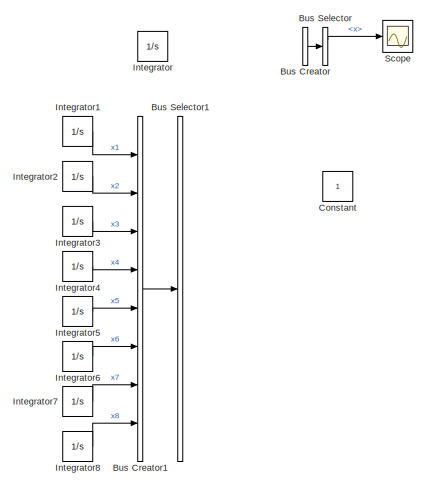
[diagram: root canvas - part 1/2, top left region]
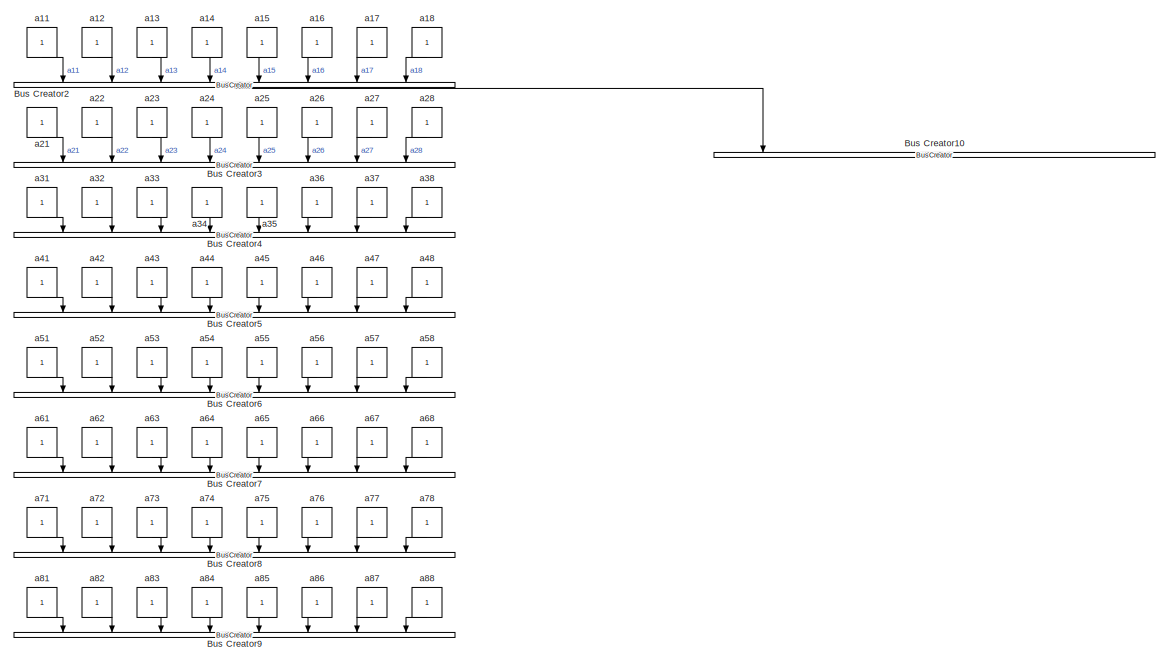
[diagram: root canvas - part 2/2, full width, bottom band]
MODEL slx_18f3fb694a1e
KIND model
CONFIG AbsTol = auto
CONFIG EnableMultiTasking = off
CONFIG FixedStep = 0.001
CONFIG MaxStep = auto
CONFIG MinStep = auto
CONFIG RelTol = 1e-3
CONFIG SampleTimeConstraint = Unconstrained
CONFIG Solver = ode3
CONFIG SolverName = ode3
CONFIG StartTime = 0.0
CONFIG StopTime = 10.0
BLOCK [BusCreator] Bus Creator
  DisplayOption = bar
  InheritFromInputs = on
  Inputs = 2
  Ports = [2, 1]
BLOCK [BusCreator] Bus Creator1
  DisplayOption = bar
  InheritFromInputs = on
  Inputs = 8
  Ports = [8, 1]
BLOCK [BusCreator] Bus Creator10
  DisplayOption = bar
  InheritFromInputs = on
  Inputs = 8
  Ports = [8, 1]
BLOCK [BusCreator] Bus Creator2
  DisplayOption = bar
  InheritFromInputs = on
  Inputs = 8
  Ports = [8, 1]
BLOCK [BusCreator] Bus Creator3
  DisplayOption = bar
  InheritFromInputs = on
  Inputs = 8
  Ports = [8, 1]
BLOCK [BusCreator] Bus Creator4
  DisplayOption = bar
  InheritFromInputs = on
  Inputs = 8
  Ports = [8, 1]
BLOCK [BusCreator] Bus Creator5
  DisplayOption = bar
  InheritFromInputs = on
  Inputs = 8
  Ports = [8, 1]
BLOCK [BusCreator] Bus Creator6
  DisplayOption = bar
  InheritFromInputs = on
  Inputs = 8
  Ports = [8, 1]
BLOCK [BusCreator] Bus Creator7
  DisplayOption = bar
  InheritFromInputs = on
  Inputs = 8
  Ports = [8, 1]
BLOCK [BusCreator] Bus Creator8
  DisplayOption = bar
  InheritFromInputs = on
  Inputs = 8
  Ports = [8, 1]
BLOCK [BusCreator] Bus Creator9
  DisplayOption = bar
  InheritFromInputs = on
  Inputs = 8
  Ports = [8, 1]
BLOCK [BusSelector] Bus Selector
  OutputAsBus = off
  OutputSignals = x,signal2
  Ports = [1, 2]
BLOCK [BusSelector] Bus Selector1
  OutputAsBus = off
  OutputSignals = x1,x2,x3,x4,x5,x6,x7,x8
  Ports = [1, 8]
BLOCK [Constant] Constant
BLOCK [Integrator] Integrator
  InitialCondition = [10, 4, 8, 2, 9, 3, 5, 7]
  Ports = [1, 1]
BLOCK [Integrator] Integrator1
  InitialCondition = [1, 2]
  Ports = [1, 1]
BLOCK [Integrator] Integrator2
  InitialCondition = [1, 2]
  Ports = [1, 1]
BLOCK [Integrator] Integrator3
  InitialCondition = [1, 2]
  Ports = [1, 1]
BLOCK [Integrator] Integrator4
  InitialCondition = [1, 2]
  Ports = [1, 1]
BLOCK [Integrator] Integrator5
  InitialCondition = [1, 2]
  Ports = [1, 1]
BLOCK [Integrator] Integrator6
  InitialCondition = [1, 2]
  Ports = [1, 1]
BLOCK [Integrator] Integrator7
  InitialCondition = [1, 2]
  Ports = [1, 1]
BLOCK [Integrator] Integrator8
  InitialCondition = [1, 2]
  Ports = [1, 1]
BLOCK [Scope] Scope
  Floating = off
  NumInputPorts = 1
  Ports = [1]
  ScopeSpecificationString = Simulink.scopes.TimeScopeBlockCfg('CurrentConfiguration', extmgr.ConfigurationSet(extmgr.Configuration('Core','General UI',true),extmgr.Configuration('Core','Source UI',true),extmgr.Configuration('Sources','WiredSimulink',true),extmgr.Configuration('Visuals','Time Domain',true,'SerializedDisplays',{struct('MinYLimReal','-27530.83223','MaxYLimReal','247797.49009','YLabelReal','','MinYLimMag','   0....<+1441ch>
BLOCK [Constant] a11
BLOCK [Constant] a12
BLOCK [Constant] a13
BLOCK [Constant] a14
BLOCK [Constant] a15
BLOCK [Constant] a16
BLOCK [Constant] a17
BLOCK [Constant] a18
BLOCK [Constant] a21
BLOCK [Constant] a22
BLOCK [Constant] a23
BLOCK [Constant] a24
BLOCK [Constant] a25
BLOCK [Constant] a26
BLOCK [Constant] a27
BLOCK [Constant] a28
BLOCK [Constant] a31
BLOCK [Constant] a32
BLOCK [Constant] a33
BLOCK [Constant] a34
BLOCK [Constant] a35
BLOCK [Constant] a36
BLOCK [Constant] a37
BLOCK [Constant] a38
BLOCK [Constant] a41
BLOCK [Constant] a42
BLOCK [Constant] a43
BLOCK [Constant] a44
BLOCK [Constant] a45
BLOCK [Constant] a46
BLOCK [Constant] a47
BLOCK [Constant] a48
BLOCK [Constant] a51
BLOCK [Constant] a52
BLOCK [Constant] a53
BLOCK [Constant] a54
BLOCK [Constant] a55
BLOCK [Constant] a56
BLOCK [Constant] a57
BLOCK [Constant] a58
BLOCK [Constant] a61
BLOCK [Constant] a62
BLOCK [Constant] a63
BLOCK [Constant] a64
BLOCK [Constant] a65
BLOCK [Constant] a66
BLOCK [Constant] a67
BLOCK [Constant] a68
BLOCK [Constant] a71
BLOCK [Constant] a72
BLOCK [Constant] a73
BLOCK [Constant] a74
BLOCK [Constant] a75
BLOCK [Constant] a76
BLOCK [Constant] a77
BLOCK [Constant] a78
BLOCK [Constant] a81
BLOCK [Constant] a82
BLOCK [Constant] a83
BLOCK [Constant] a84
BLOCK [Constant] a85
BLOCK [Constant] a86
BLOCK [Constant] a87
BLOCK [Constant] a88
LINE Bus Creator1:1 -> Bus Selector1:1
LINE Bus Creator2:1 -> Bus Creator10:1
LINE Bus Creator:1 -> Bus Selector:1
LINE Bus Selector:1 -> Scope:1
LINE Integrator1:1 -> Bus Creator1:1
LINE Integrator2:1 -> Bus Creator1:2
LINE Integrator3:1 -> Bus Creator1:3
LINE Integrator4:1 -> Bus Creator1:4
LINE Integrator5:1 -> Bus Creator1:5
LINE Integrator6:1 -> Bus Creator1:6
LINE Integrator7:1 -> Bus Creator1:7
LINE Integrator8:1 -> Bus Creator1:8
LINE a11:1 -> Bus Creator2:1
LINE a12:1 -> Bus Creator2:2
LINE a13:1 -> Bus Creator2:3
LINE a14:1 -> Bus Creator2:4
LINE a15:1 -> Bus Creator2:5
LINE a16:1 -> Bus Creator2:6
LINE a17:1 -> Bus Creator2:7
LINE a18:1 -> Bus Creator2:8
LINE a21:1 -> Bus Creator3:1
LINE a22:1 -> Bus Creator3:2
LINE a23:1 -> Bus Creator3:3
LINE a24:1 -> Bus Creator3:4
LINE a25:1 -> Bus Creator3:5
LINE a26:1 -> Bus Creator3:6
LINE a27:1 -> Bus Creator3:7
LINE a28:1 -> Bus Creator3:8
LINE a31:1 -> Bus Creator4:1
LINE a32:1 -> Bus Creator4:2
LINE a33:1 -> Bus Creator4:3
LINE a34:1 -> Bus Creator4:4
LINE a35:1 -> Bus Creator4:5
LINE a36:1 -> Bus Creator4:6
LINE a37:1 -> Bus Creator4:7
LINE a38:1 -> Bus Creator4:8
LINE a41:1 -> Bus Creator5:1
LINE a42:1 -> Bus Creator5:2
LINE a43:1 -> Bus Creator5:3
LINE a44:1 -> Bus Creator5:4
LINE a45:1 -> Bus Creator5:5
LINE a46:1 -> Bus Creator5:6
LINE a47:1 -> Bus Creator5:7
LINE a48:1 -> Bus Creator5:8
LINE a51:1 -> Bus Creator6:1
LINE a52:1 -> Bus Creator6:2
LINE a53:1 -> Bus Creator6:3
LINE a54:1 -> Bus Creator6:4
LINE a55:1 -> Bus Creator6:5
LINE a56:1 -> Bus Creator6:6
LINE a57:1 -> Bus Creator6:7
LINE a58:1 -> Bus Creator6:8
LINE a61:1 -> Bus Creator7:1
LINE a62:1 -> Bus Creator7:2
LINE a63:1 -> Bus Creator7:3
LINE a64:1 -> Bus Creator7:4
LINE a65:1 -> Bus Creator7:5
LINE a66:1 -> Bus Creator7:6
LINE a67:1 -> Bus Creator7:7
LINE a68:1 -> Bus Creator7:8
LINE a71:1 -> Bus Creator8:1
LINE a72:1 -> Bus Creator8:2
LINE a73:1 -> Bus Creator8:3
LINE a74:1 -> Bus Creator8:4
LINE a75:1 -> Bus Creator8:5
LINE a76:1 -> Bus Creator8:6
LINE a77:1 -> Bus Creator8:7
LINE a78:1 -> Bus Creator8:8
LINE a81:1 -> Bus Creator9:1
LINE a82:1 -> Bus Creator9:2
LINE a83:1 -> Bus Creator9:3
LINE a84:1 -> Bus Creator9:4
LINE a85:1 -> Bus Creator9:5
LINE a86:1 -> Bus Creator9:6
LINE a87:1 -> Bus Creator9:7
LINE a88:1 -> Bus Creator9:8
